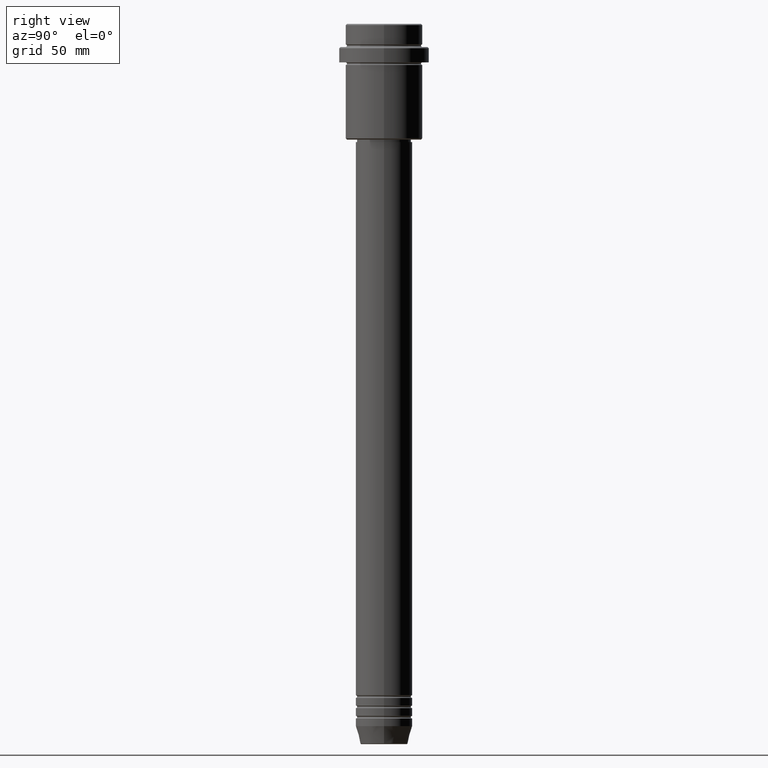
[diagram: clean part render]
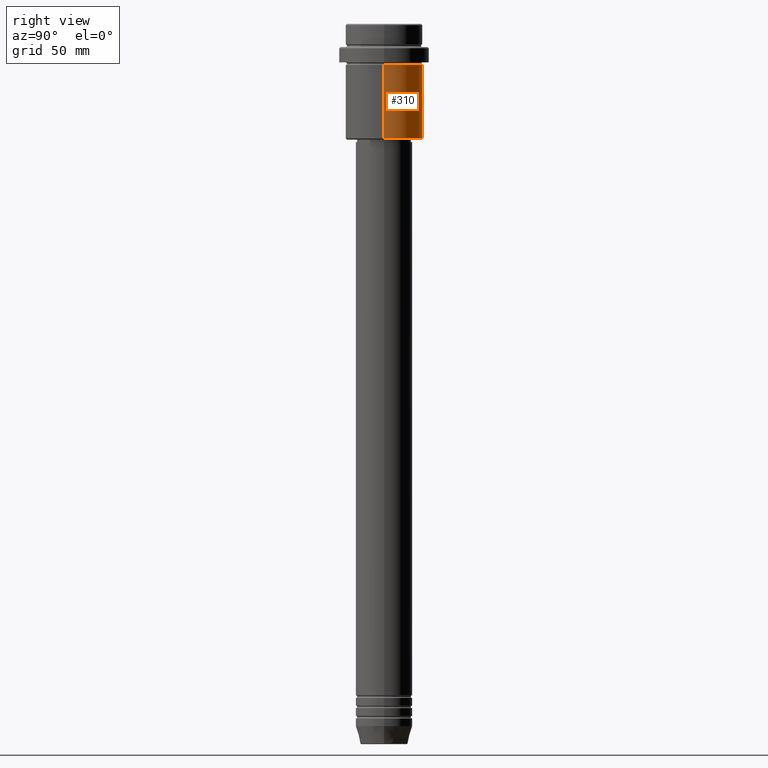
[diagram: same view with one face highlighted and labeled with its STEP entity id]
A machine part, right view. The second image highlights one B-rep face of the part: STEP entity #310.
In plain terms, the highlighted cylindrical surface (partial cylindrical patch) has radius 15 mm, axis along (-0, -0, 1).
Its self-contained STEP definition (entity closure, byte-faithful):
#2 = CARTESIAN_POINT ( 'NONE',  ( 0.000000000000000000, 0.000000000000000000, 0.000000000000000000 ) ) ;
#39 = EDGE_CURVE ( 'NONE', #64, #268, #280, .T. ) ;
#45 = ORIENTED_EDGE ( 'NONE', *, *, #1411, .F. ) ;
#48 = DIRECTION ( 'NONE',  ( -0.000000000000000000, -0.000000000000000000, 1.000000000000000000 ) ) ;
#61 = DIRECTION ( 'NONE',  ( -0.000000000000000000, -0.000000000000000000, 1.000000000000000000 ) ) ;
#64 = VERTEX_POINT ( 'NONE', #947 ) ;
#241 = DIRECTION ( 'NONE',  ( -0.000000000000000000, -0.000000000000000000, 1.000000000000000000 ) ) ;
#246 = FACE_OUTER_BOUND ( 'NONE', #797, .T. ) ;
#264 = VECTOR ( 'NONE', #710, 1000.000000000000000 ) ;
#268 = VERTEX_POINT ( 'NONE', #690 ) ;
#280 = CIRCLE ( 'NONE', #1136, 15.00000000000000000 ) ;
#310 = ADVANCED_FACE ( 'NONE', ( #246 ), #332, .T. ) ;
#332 = CYLINDRICAL_SURFACE ( 'NONE', #1357, 15.00000000000000000 ) ;
#359 = DIRECTION ( 'NONE',  ( -0.000000000000000000, -0.000000000000000000, 1.000000000000000000 ) ) ;
#373 = LINE ( 'NONE', #379, #264 ) ;
#379 = CARTESIAN_POINT ( 'NONE',  ( -15.00000000000000000, 1.836970198721029589E-15, 0.000000000000000000 ) ) ;
#392 = LINE ( 'NONE', #1155, #921 ) ;
#512 = AXIS2_PLACEMENT_3D ( 'NONE', #894, #359, #983 ) ;
#559 = EDGE_CURVE ( 'NONE', #64, #1341, #392, .T. ) ;
#588 = CIRCLE ( 'NONE', #512, 15.00000000000000178 ) ;
#601 = ORIENTED_EDGE ( 'NONE', *, *, #39, .T. ) ;
#621 = CARTESIAN_POINT ( 'NONE',  ( 15.00000000000000178, 0.000000000000000000, -16.00000000000000000 ) ) ;
#690 = CARTESIAN_POINT ( 'NONE',  ( -15.00000000000000000, 1.836970198721029589E-15, -44.50000000000003553 ) ) ;
#710 = DIRECTION ( 'NONE',  ( -0.000000000000000000, -0.000000000000000000, 1.000000000000000000 ) ) ;
#797 = EDGE_LOOP ( 'NONE', ( #601, #1236, #45, #1067 ) ) ;
#850 = CARTESIAN_POINT ( 'NONE',  ( -15.00000000000000355, 1.836970198721029983E-15, -16.00000000000000000 ) ) ;
#894 = CARTESIAN_POINT ( 'NONE',  ( 0.000000000000000000, 0.000000000000000000, -16.00000000000000000 ) ) ;
#918 = CARTESIAN_POINT ( 'NONE',  ( 0.000000000000000000, 0.000000000000000000, -44.50000000000003553 ) ) ;
#921 = VECTOR ( 'NONE', #61, 1000.000000000000000 ) ;
#924 = DIRECTION ( 'NONE',  ( -1.000000000000000000, 0.000000000000000000, 0.000000000000000000 ) ) ;
#947 = CARTESIAN_POINT ( 'NONE',  ( 15.00000000000000000, 0.000000000000000000, -44.50000000000003553 ) ) ;
#983 = DIRECTION ( 'NONE',  ( 1.000000000000000000, 0.000000000000000000, 0.000000000000000000 ) ) ;
#1067 = ORIENTED_EDGE ( 'NONE', *, *, #559, .F. ) ;
#1136 = AXIS2_PLACEMENT_3D ( 'NONE', #918, #48, #924 ) ;
#1153 = VERTEX_POINT ( 'NONE', #850 ) ;
#1155 = CARTESIAN_POINT ( 'NONE',  ( 15.00000000000000000, 0.000000000000000000, 0.000000000000000000 ) ) ;
#1236 = ORIENTED_EDGE ( 'NONE', *, *, #1354, .T. ) ;
#1338 = DIRECTION ( 'NONE',  ( 1.000000000000000000, 0.000000000000000000, 0.000000000000000000 ) ) ;
#1341 = VERTEX_POINT ( 'NONE', #621 ) ;
#1354 = EDGE_CURVE ( 'NONE', #268, #1153, #373, .T. ) ;
#1357 = AXIS2_PLACEMENT_3D ( 'NONE', #2, #241, #1338 ) ;
#1411 = EDGE_CURVE ( 'NONE', #1341, #1153, #588, .T. ) ;